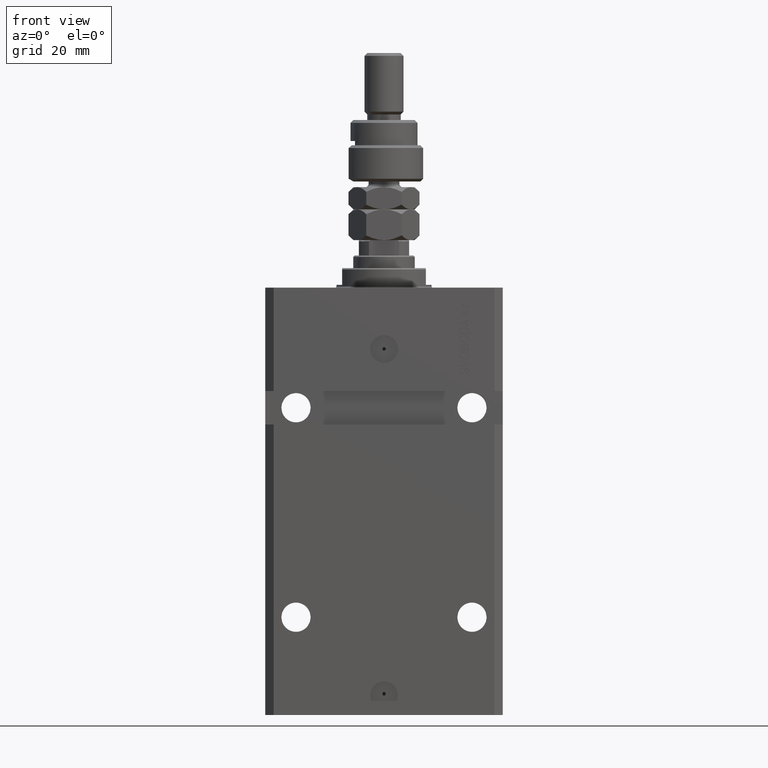
[diagram: clean part render]
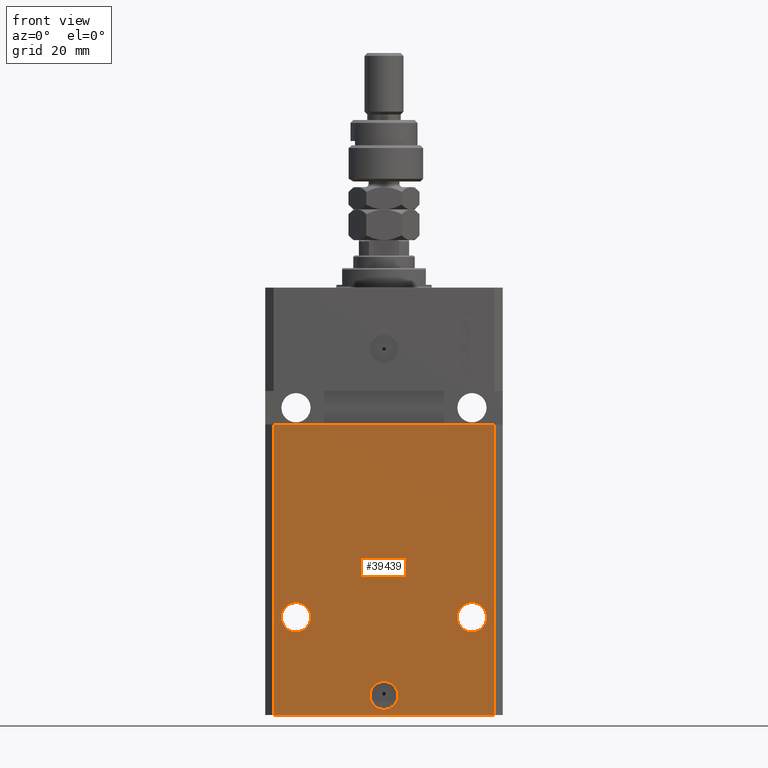
[diagram: same view with one face highlighted and labeled with its STEP entity id]
A machine part, front view. The second image highlights one B-rep face of the part: STEP entity #39439.
In plain terms, the highlighted planar face has unit normal (0, -1, 0).
Its self-contained STEP definition (entity closure, byte-faithful):
#128 = VERTEX_POINT ( 'NONE', #17666 ) ;
#1025 = CARTESIAN_POINT ( 'NONE',  ( -39.50000000000000711, -31.50000000000000000, -153.0000000000000000 ) ) ;
#1187 = ORIENTED_EDGE ( 'NONE', *, *, #45607, .T. ) ;
#1277 = DIRECTION ( 'NONE',  ( 0.000000000000000000, 0.000000000000000000, 1.000000000000000000 ) ) ;
#1455 = ORIENTED_EDGE ( 'NONE', *, *, #10072, .F. ) ;
#2087 = LINE ( 'NONE', #33850, #48625 ) ;
#2513 = CARTESIAN_POINT ( 'NONE',  ( 36.75000000000001421, -31.49999999999999289, -118.0000000000000000 ) ) ;
#2554 = VERTEX_POINT ( 'NONE', #20963 ) ;
#3598 = AXIS2_PLACEMENT_3D ( 'NONE', #4743, #36508, #16737 ) ;
#3603 = CIRCLE ( 'NONE', #37680, 5.249999999999997335 ) ;
#3758 = VERTEX_POINT ( 'NONE', #13828 ) ;
#4011 = EDGE_LOOP ( 'NONE', ( #40928, #4709, #1187, #39926 ) ) ;
#4687 = DIRECTION ( 'NONE',  ( 1.176083712526788232E-16, -1.000000000000000000, 0.000000000000000000 ) ) ;
#4709 = ORIENTED_EDGE ( 'NONE', *, *, #4759, .F. ) ;
#4743 = CARTESIAN_POINT ( 'NONE',  ( 0.000000000000000000, -31.50000000000000000, -146.0000000000000000 ) ) ;
#4744 = CARTESIAN_POINT ( 'NONE',  ( -5.000000000000006217, -31.50000000000000000, -146.0000000000000000 ) ) ;
#4759 = EDGE_CURVE ( 'NONE', #3758, #50608, #13506, .T. ) ;
#5321 = CARTESIAN_POINT ( 'NONE',  ( 39.50000000000000711, -31.50000000000000000, -153.0000000000000000 ) ) ;
#7327 = AXIS2_PLACEMENT_3D ( 'NONE', #21655, #8916, #37523 ) ;
#7948 = FACE_BOUND ( 'NONE', #22112, .T. ) ;
#8605 = AXIS2_PLACEMENT_3D ( 'NONE', #26243, #42105, #26756 ) ;
#8916 = DIRECTION ( 'NONE',  ( 1.176083712526788232E-16, -1.000000000000000000, 0.000000000000000000 ) ) ;
#8947 = CARTESIAN_POINT ( 'NONE',  ( -31.50000000000001421, -31.50000000000000711, -118.0000000000000000 ) ) ;
#9443 = CIRCLE ( 'NONE', #8605, 5.249999999999997335 ) ;
#10072 = EDGE_CURVE ( 'NONE', #16135, #20461, #33483, .T. ) ;
#11035 = AXIS2_PLACEMENT_3D ( 'NONE', #8947, #24315, #32118 ) ;
#11848 = FACE_BOUND ( 'NONE', #51326, .T. ) ;
#12986 = EDGE_CURVE ( 'NONE', #50608, #19629, #32372, .T. ) ;
#13126 = DIRECTION ( 'NONE',  ( 0.000000000000000000, -1.000000000000000000, 0.000000000000000000 ) ) ;
#13506 = LINE ( 'NONE', #1025, #41580 ) ;
#13632 = DIRECTION ( 'NONE',  ( 0.000000000000000000, -0.000000000000000000, -1.000000000000000000 ) ) ;
#13828 = CARTESIAN_POINT ( 'NONE',  ( -39.50000000000000711, -31.50000000000000000, -153.0000000000000000 ) ) ;
#14579 = EDGE_CURVE ( 'NONE', #128, #26049, #3603, .T. ) ;
#14704 = EDGE_CURVE ( 'NONE', #26049, #128, #9443, .T. ) ;
#15409 = CARTESIAN_POINT ( 'NONE',  ( 39.50000000000000711, -31.50000000000000000, -153.0000000000000000 ) ) ;
#15823 = EDGE_CURVE ( 'NONE', #50024, #2554, #41873, .T. ) ;
#16135 = VERTEX_POINT ( 'NONE', #27763 ) ;
#16737 = DIRECTION ( 'NONE',  ( 1.000000000000000000, 0.000000000000000000, 0.000000000000000000 ) ) ;
#17666 = CARTESIAN_POINT ( 'NONE',  ( 26.25000000000001776, -31.49999999999999289, -118.0000000000000000 ) ) ;
#19349 = ORIENTED_EDGE ( 'NONE', *, *, #14579, .F. ) ;
#19491 = CARTESIAN_POINT ( 'NONE',  ( -39.50000000000000000, -31.50000000000000711, -48.99999999999999289 ) ) ;
#19629 = VERTEX_POINT ( 'NONE', #36916 ) ;
#20327 = CARTESIAN_POINT ( 'NONE',  ( 0.000000000000000000, -31.50000000000000000, -146.0000000000000000 ) ) ;
#20461 = VERTEX_POINT ( 'NONE', #35191 ) ;
#20963 = CARTESIAN_POINT ( 'NONE',  ( 5.000000000000006217, -31.50000000000000000, -146.0000000000000000 ) ) ;
#21425 = LINE ( 'NONE', #15409, #40270 ) ;
#21655 = CARTESIAN_POINT ( 'NONE',  ( -31.50000000000001421, -31.50000000000000711, -118.0000000000000000 ) ) ;
#22087 = CARTESIAN_POINT ( 'NONE',  ( 31.50000000000001421, -31.49999999999999289, -118.0000000000000000 ) ) ;
#22112 = EDGE_LOOP ( 'NONE', ( #1455, #32956 ) ) ;
#22619 = EDGE_LOOP ( 'NONE', ( #37424, #19349 ) ) ;
#23751 = DIRECTION ( 'NONE',  ( 0.000000000000000000, 0.000000000000000000, 1.000000000000000000 ) ) ;
#23833 = FACE_OUTER_BOUND ( 'NONE', #4011, .T. ) ;
#24315 = DIRECTION ( 'NONE',  ( 1.176083712526788232E-16, -1.000000000000000000, 0.000000000000000000 ) ) ;
#25475 = ORIENTED_EDGE ( 'NONE', *, *, #15823, .F. ) ;
#25984 = DIRECTION ( 'NONE',  ( 1.176083712526788232E-16, -1.000000000000000000, 0.000000000000000000 ) ) ;
#26049 = VERTEX_POINT ( 'NONE', #2513 ) ;
#26243 = CARTESIAN_POINT ( 'NONE',  ( 31.50000000000001421, -31.49999999999999289, -118.0000000000000000 ) ) ;
#26756 = DIRECTION ( 'NONE',  ( 1.000000000000000000, 0.000000000000000000, 0.000000000000000000 ) ) ;
#26994 = EDGE_CURVE ( 'NONE', #20461, #16135, #47185, .T. ) ;
#27763 = CARTESIAN_POINT ( 'NONE',  ( -26.25000000000001776, -31.50000000000000711, -118.0000000000000000 ) ) ;
#28990 = DIRECTION ( 'NONE',  ( 1.000000000000000000, 1.632680918566406054E-16, 1.632680918566406054E-16 ) ) ;
#30212 = DIRECTION ( 'NONE',  ( 1.000000000000000000, 0.000000000000000000, 0.000000000000000000 ) ) ;
#31820 = VECTOR ( 'NONE', #28990, 1000.000000000000000 ) ;
#32118 = DIRECTION ( 'NONE',  ( -1.000000000000000000, 0.000000000000000000, 0.000000000000000000 ) ) ;
#32372 = LINE ( 'NONE', #36537, #31820 ) ;
#32654 = CARTESIAN_POINT ( 'NONE',  ( -39.50000000000000711, -31.50000000000000000, -153.0000000000000000 ) ) ;
#32742 = AXIS2_PLACEMENT_3D ( 'NONE', #20327, #4687, #47896 ) ;
#32956 = ORIENTED_EDGE ( 'NONE', *, *, #26994, .F. ) ;
#33483 = CIRCLE ( 'NONE', #11035, 5.249999999999997335 ) ;
#33850 = CARTESIAN_POINT ( 'NONE',  ( -39.50000000000000711, -31.50000000000000000, -153.0000000000000000 ) ) ;
#35191 = CARTESIAN_POINT ( 'NONE',  ( -36.75000000000001421, -31.50000000000000711, -118.0000000000000000 ) ) ;
#35790 = FACE_BOUND ( 'NONE', #22619, .T. ) ;
#36508 = DIRECTION ( 'NONE',  ( 1.176083712526788232E-16, -1.000000000000000000, 0.000000000000000000 ) ) ;
#36537 = CARTESIAN_POINT ( 'NONE',  ( -42.50000000000001421, -31.50000000000000711, -48.99999999999999289 ) ) ;
#36916 = CARTESIAN_POINT ( 'NONE',  ( 39.50000000000000000, -31.49999999999999289, -48.99999999999997868 ) ) ;
#37424 = ORIENTED_EDGE ( 'NONE', *, *, #14704, .F. ) ;
#37523 = DIRECTION ( 'NONE',  ( -1.000000000000000000, 0.000000000000000000, 0.000000000000000000 ) ) ;
#37680 = AXIS2_PLACEMENT_3D ( 'NONE', #22087, #25984, #37949 ) ;
#37949 = DIRECTION ( 'NONE',  ( 1.000000000000000000, 0.000000000000000000, 0.000000000000000000 ) ) ;
#39439 = ADVANCED_FACE ( 'NONE', ( #11848, #35790, #7948, #23833 ), #48515, .T. ) ;
#39926 = ORIENTED_EDGE ( 'NONE', *, *, #45309, .T. ) ;
#40270 = VECTOR ( 'NONE', #23751, 1000.000000000000000 ) ;
#40928 = ORIENTED_EDGE ( 'NONE', *, *, #12986, .F. ) ;
#41580 = VECTOR ( 'NONE', #1277, 1000.000000000000000 ) ;
#41873 = CIRCLE ( 'NONE', #32742, 5.000000000000006217 ) ;
#42105 = DIRECTION ( 'NONE',  ( 1.176083712526788232E-16, -1.000000000000000000, 0.000000000000000000 ) ) ;
#42588 = EDGE_CURVE ( 'NONE', #2554, #50024, #48481, .T. ) ;
#45027 = AXIS2_PLACEMENT_3D ( 'NONE', #32654, #13126, #13632 ) ;
#45166 = ORIENTED_EDGE ( 'NONE', *, *, #42588, .F. ) ;
#45309 = EDGE_CURVE ( 'NONE', #47121, #19629, #21425, .T. ) ;
#45607 = EDGE_CURVE ( 'NONE', #3758, #47121, #2087, .T. ) ;
#47121 = VERTEX_POINT ( 'NONE', #5321 ) ;
#47185 = CIRCLE ( 'NONE', #7327, 5.249999999999997335 ) ;
#47896 = DIRECTION ( 'NONE',  ( 1.000000000000000000, 0.000000000000000000, 0.000000000000000000 ) ) ;
#48481 = CIRCLE ( 'NONE', #3598, 5.000000000000006217 ) ;
#48515 = PLANE ( 'NONE',  #45027 ) ;
#48625 = VECTOR ( 'NONE', #30212, 1000.000000000000000 ) ;
#50024 = VERTEX_POINT ( 'NONE', #4744 ) ;
#50608 = VERTEX_POINT ( 'NONE', #19491 ) ;
#51326 = EDGE_LOOP ( 'NONE', ( #45166, #25475 ) ) ;